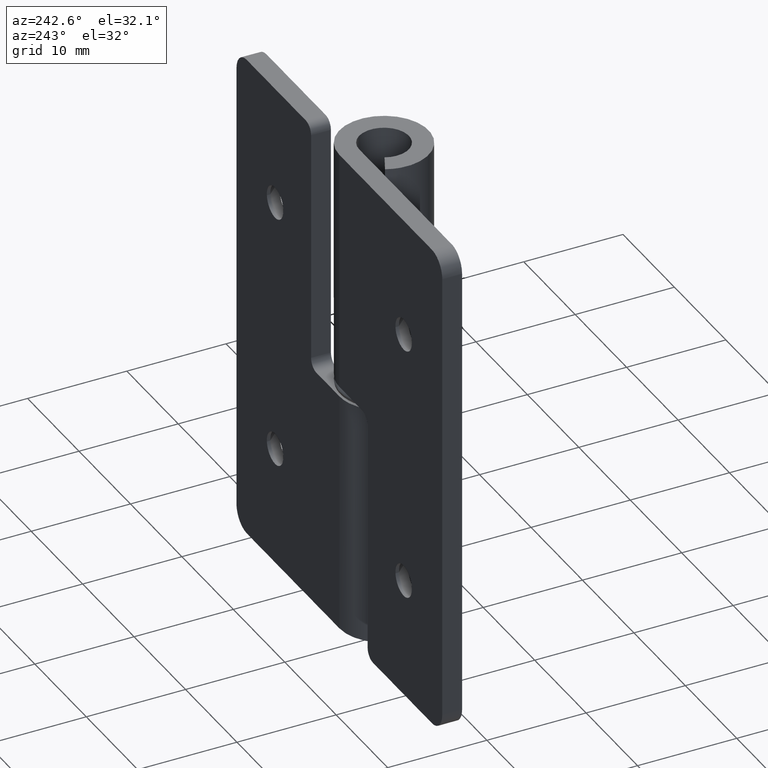
[diagram: clean part render]
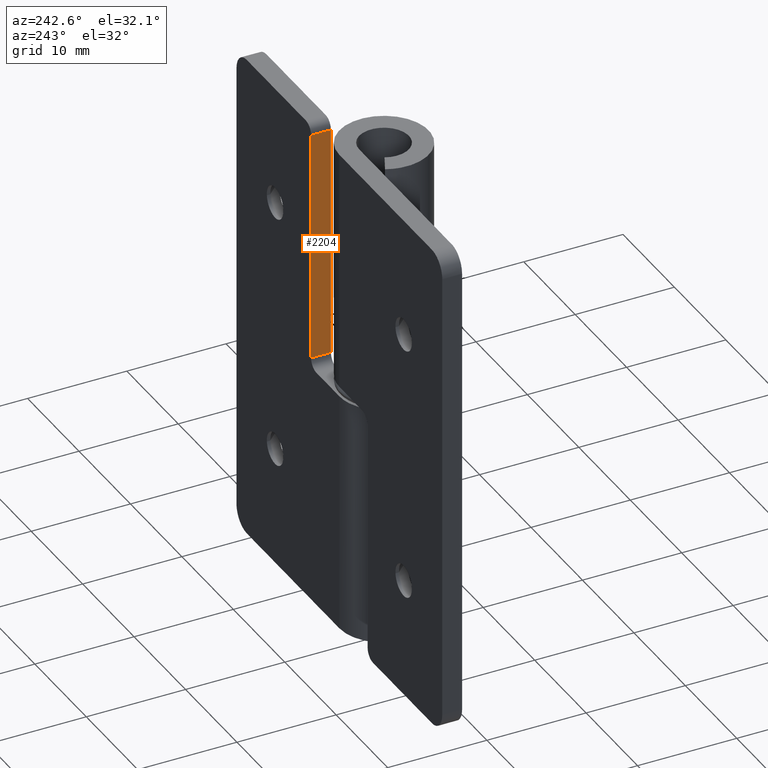
[diagram: same view with one face highlighted and labeled with its STEP entity id]
A machine part, auxiliary view. The second image highlights one B-rep face of the part: STEP entity #2204.
In plain terms, the highlighted face is a freeform B-spline surface patch.
Its self-contained STEP definition (entity closure, byte-faithful):
#1953=CARTESIAN_POINT('',(5.500000000000000,2.499999999982255,49.0));
#1954=VERTEX_POINT('',#1953);
#1977=CARTESIAN_POINT('',(5.500000000000000,4.499999999999920,49.0));
#1978=VERTEX_POINT('',#1977);
#1992=CARTESIAN_POINT('',(5.500000000000000,4.499999999999920,49.0));
#1993=CARTESIAN_POINT('',(5.500000000000000,2.499999999982255,49.0));
#1994=QUASI_UNIFORM_CURVE('',1,(#1992,#1993),.UNSPECIFIED.,.F.,.U.);
#1995=EDGE_CURVE('',#1978,#1954,#1994,.T.);
#2016=CARTESIAN_POINT('',(5.500000000000000,2.499999999982255,25.500000000000000));
#2017=VERTEX_POINT('',#2016);
#2031=CARTESIAN_POINT('',(5.500000000000000,4.499999999999920,25.500000000000000));
#2032=VERTEX_POINT('',#2031);
#2033=CARTESIAN_POINT('',(5.500000000000000,2.499999999982255,25.500000000000000));
#2034=CARTESIAN_POINT('',(5.500000000000000,4.499999999999920,25.500000000000000));
#2035=QUASI_UNIFORM_CURVE('',1,(#2033,#2034),.UNSPECIFIED.,.F.,.U.);
#2036=EDGE_CURVE('',#2017,#2032,#2035,.T.);
#2185=CARTESIAN_POINT('',(5.500000000000000,4.599899996124415,24.326175045547561));
#2186=CARTESIAN_POINT('',(5.500000000000000,4.599899996124415,50.173825584771564));
#2187=CARTESIAN_POINT('',(5.500000000000000,2.400099950213581,24.326175045547561));
#2188=CARTESIAN_POINT('',(5.500000000000000,2.400099950213581,50.173825584771564));
#2189=B_SPLINE_SURFACE_WITH_KNOTS('',1,1,((#2185,#2187),(#2186,#2188)),.UNSPECIFIED.,.F.,.F.,.U.,(2,2),(2,2),(0.0,25.847650539223999),(0.0,2.199800045910834),.UNSPECIFIED.);
#2190=CARTESIAN_POINT('',(5.500000000000000,2.499999999982255,25.500000000000000));
#2191=CARTESIAN_POINT('',(5.500000000000000,2.499999999982255,49.0));
#2192=QUASI_UNIFORM_CURVE('',1,(#2190,#2191),.UNSPECIFIED.,.F.,.U.);
#2193=EDGE_CURVE('',#2017,#1954,#2192,.T.);
#2194=ORIENTED_EDGE('',*,*,#2193,.T.);
#2195=ORIENTED_EDGE('',*,*,#1995,.F.);
#2196=CARTESIAN_POINT('',(5.500000000000000,4.499999999999920,25.500000000000000));
#2197=CARTESIAN_POINT('',(5.500000000000000,4.499999999999920,49.0));
#2198=QUASI_UNIFORM_CURVE('',1,(#2196,#2197),.UNSPECIFIED.,.F.,.U.);
#2199=EDGE_CURVE('',#2032,#1978,#2198,.T.);
#2200=ORIENTED_EDGE('',*,*,#2199,.F.);
#2201=ORIENTED_EDGE('',*,*,#2036,.F.);
#2202=EDGE_LOOP('',(#2194,#2195,#2200,#2201));
#2203=FACE_OUTER_BOUND('',#2202,.T.);
#2204=ADVANCED_FACE('',(#2203),#2189,.F.);